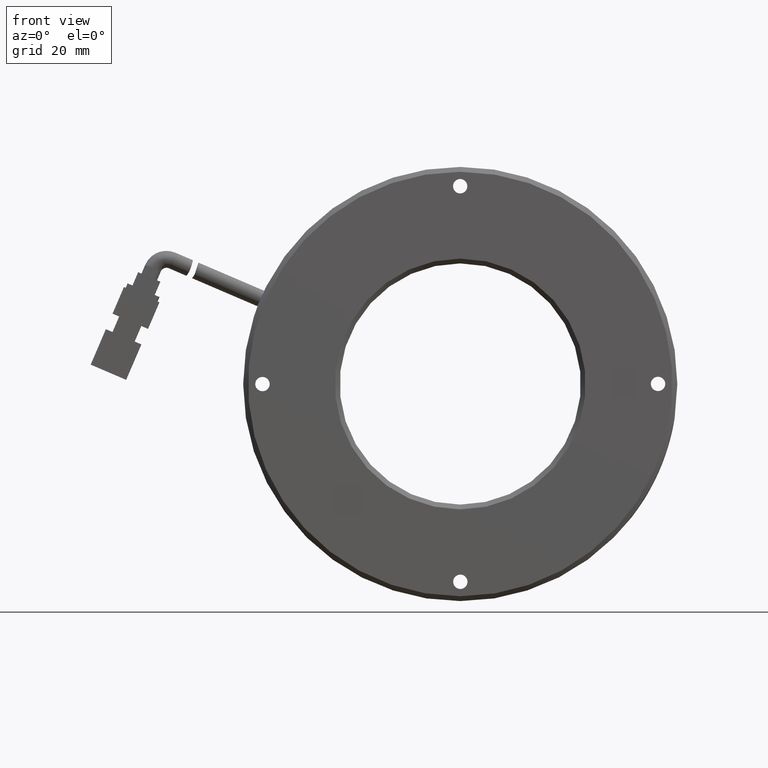
[diagram: clean part render]
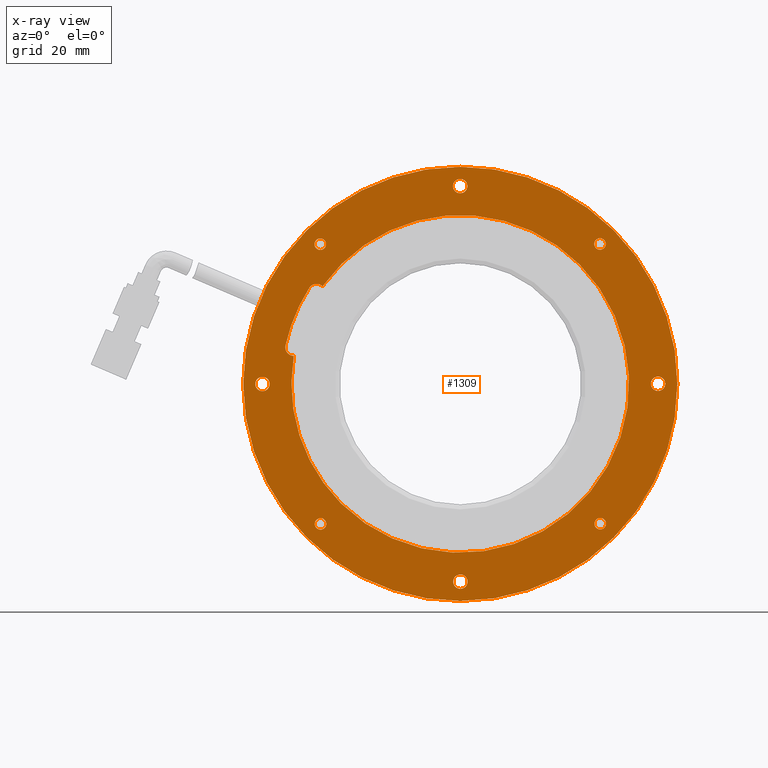
[diagram: x-ray — body ghosted, one internal face saturated and labeled with its STEP entity id]
A machine part, front view, then the same camera in x-ray: the body is ghosted and one INTERNAL B-rep face — a face not visible from any outside direction — is saturated and labeled: STEP entity #1309.
In plain terms, the highlighted planar face has unit normal (-0, 1, -0).
Its self-contained STEP definition (entity closure, byte-faithful):
#20 = CARTESIAN_POINT ( 'NONE',  ( 32.53889595117335900, 5.623552123552124200, 29.01526897348052700 ) ) ;
#43 = VERTEX_POINT ( 'NONE', #24000 ) ;
#265 = EDGE_CURVE ( 'NONE', #2759, #32310, #11354, .T. ) ;
#637 = CARTESIAN_POINT ( 'NONE',  ( 33.43452585846260000, 5.623552123552124200, -28.11823999515512200 ) ) ;
#772 = CARTESIAN_POINT ( 'NONE',  ( -21.15689724054869500, 5.623552123552118000, -24.76913205053216100 ) ) ;
#990 = EDGE_CURVE ( 'NONE', #9486, #24237, #20635, .T. ) ;
#1281 = CARTESIAN_POINT ( 'NONE',  ( -25.44384040205195800, 5.623552123552118900, 28.96746737974478900 ) ) ;
#1309 = ADVANCED_FACE ( 'NONE', ( #39333, #5828, #31017, #14161, #22541, #38350, #30018, #21589, #13174, #4812 ), #22831, .F. ) ;
#1520 = CARTESIAN_POINT ( 'NONE',  ( 43.51162924660406600, 5.623552123552126900, -1.027733399655238700 ) ) ;
#2282 = CARTESIAN_POINT ( 'NONE',  ( 28.29975438340582600, 5.623552123552125100, 24.76913205053215700 ) ) ;
#2459 = DIRECTION ( 'NONE',  ( -0.7076894871580611300, 0.0000000000000000000, 0.7065235946279221400 ) ) ;
#2471 = VERTEX_POINT ( 'NONE', #36731 ) ;
#2478 = EDGE_CURVE ( 'NONE', #23314, #43, #30967, .T. ) ;
#2491 = DIRECTION ( 'NONE',  ( -0.7076894871580611300, 0.0000000000000000000, 0.7065235946279221400 ) ) ;
#2654 = ORIENTED_EDGE ( 'NONE', *, *, #990, .F. ) ;
#2759 = VERTEX_POINT ( 'NONE', #24101 ) ;
#3173 = DIRECTION ( 'NONE',  ( 0.7065235946279211400, 0.0000000000000000000, 0.7076894871580620100 ) ) ;
#3295 = CARTESIAN_POINT ( 'NONE',  ( -26.24386712186973000, 5.623552123552118900, -29.86449635807019500 ) ) ;
#3325 = VERTEX_POINT ( 'NONE', #2282 ) ;
#3376 = EDGE_CURVE ( 'NONE', #13358, #19564, #29379, .T. ) ;
#3591 = DIRECTION ( 'NONE',  ( 1.163897087407499700E-016, -1.000000000000000000, 2.939373556709199000E-017 ) ) ;
#3609 = CIRCLE ( 'NONE', #26081, 1.199999999999998800 ) ;
#4054 = EDGE_LOOP ( 'NONE', ( #2654, #36217 ) ) ;
#4226 = CIRCLE ( 'NONE', #33713, 1.499999999999995600 ) ;
#4812 = FACE_BOUND ( 'NONE', #16398, .T. ) ;
#4819 = CARTESIAN_POINT ( 'NONE',  ( 3.537627740346577500, 5.623552123552124200, 40.99998606711736900 ) ) ;
#4958 = DIRECTION ( 'NONE',  ( 0.7065235946279211400, 0.0000000000000000000, 0.7076894871580620100 ) ) ;
#5141 = CARTESIAN_POINT ( 'NONE',  ( -24.54821049476272100, 5.623552123552118900, -28.16604158889084900 ) ) ;
#5268 = CARTESIAN_POINT ( 'NONE',  ( 45.63120003048781800, 5.623552123552126900, 1.095335061818939500 ) ) ;
#5320 = CIRCLE ( 'NONE', #32427, 37.10000000000000900 ) ;
#5639 = ORIENTED_EDGE ( 'NONE', *, *, #14529, .F. ) ;
#5828 = FACE_OUTER_BOUND ( 'NONE', #28918, .T. ) ;
#5889 = CARTESIAN_POINT ( 'NONE',  ( 4.597413132288457900, 5.623552123552124200, 42.06152029785445700 ) ) ;
#5935 = CARTESIAN_POINT ( 'NONE',  ( 3.571428571428565800, 5.623552123552121500, 0.0000000000000000000 ) ) ;
#6183 = ORIENTED_EDGE ( 'NONE', *, *, #16799, .F. ) ;
#6194 = EDGE_CURVE ( 'NONE', #26913, #7905, #14593, .T. ) ;
#6431 = CIRCLE ( 'NONE', #11655, 1.199999999999998800 ) ;
#6456 = ORIENTED_EDGE ( 'NONE', *, *, #6194, .T. ) ;
#6634 = CARTESIAN_POINT ( 'NONE',  ( 3.605229402510262900, 5.623552123552122400, -40.99998606711737600 ) ) ;
#6783 = AXIS2_PLACEMENT_3D ( 'NONE', #20, #21984, #3173 ) ;
#6887 = CARTESIAN_POINT ( 'NONE',  ( 3.605229402510262900, 5.623552123552122400, -40.99998606711737600 ) ) ;
#7536 = ORIENTED_EDGE ( 'NONE', *, *, #20744, .F. ) ;
#7561 = DIRECTION ( 'NONE',  ( 0.7065235946279211400, 0.0000000000000000000, 0.7076894871580620100 ) ) ;
#7714 = VERTEX_POINT ( 'NONE', #1520 ) ;
#7905 = VERTEX_POINT ( 'NONE', #18525 ) ;
#7966 = EDGE_CURVE ( 'NONE', #10962, #2471, #12098, .T. ) ;
#7972 = DIRECTION ( 'NONE',  ( -0.7065235946279192500, 0.0000000000000000000, -0.7076894871580640100 ) ) ;
#7975 = CIRCLE ( 'NONE', #10495, 1.499999999999996700 ) ;
#8001 = AXIS2_PLACEMENT_3D ( 'NONE', #10501, #32594, #13669 ) ;
#8016 = CARTESIAN_POINT ( 'NONE',  ( 3.571428571428565800, 5.623552123552121500, 0.0000000000000000000 ) ) ;
#8030 = CIRCLE ( 'NONE', #26879, 1.499999999999994900 ) ;
#8663 = EDGE_CURVE ( 'NONE', #23005, #27114, #7975, .T. ) ;
#8677 = EDGE_LOOP ( 'NONE', ( #15362, #17284, #40695, #5639, #10835, #6183, #7536 ) ) ;
#9085 = DIRECTION ( 'NONE',  ( 0.7065235946279216900, 9.912705577010326800E-017, 0.7076894871580616800 ) ) ;
#9125 = VERTEX_POINT ( 'NONE', #637 ) ;
#9190 = VERTEX_POINT ( 'NONE', #19688 ) ;
#9320 = DIRECTION ( 'NONE',  ( 1.163897087407499700E-016, -1.000000000000000000, 2.939373556709199600E-017 ) ) ;
#9486 = VERTEX_POINT ( 'NONE', #5141 ) ;
#9768 = DIRECTION ( 'NONE',  ( -0.7065235946279202500, 0.0000000000000000000, -0.7076894871580629000 ) ) ;
#9817 = DIRECTION ( 'NONE',  ( 1.163897087407499700E-016, -1.000000000000000000, 2.939373556709199600E-017 ) ) ;
#9857 = CARTESIAN_POINT ( 'NONE',  ( 2.477842348404698300, 5.623552123552124200, 39.93845183638028100 ) ) ;
#10042 = DIRECTION ( 'NONE',  ( -0.7065235946279192500, 0.0000000000000000000, -0.7076894871580640100 ) ) ;
#10112 = CARTESIAN_POINT ( 'NONE',  ( -26.29166871560546100, 5.623552123552118900, 28.11823999515511500 ) ) ;
#10277 = DIRECTION ( 'NONE',  ( -1.163897087407499700E-016, 1.000000000000000000, -2.939373556709199600E-017 ) ) ;
#10495 = AXIS2_PLACEMENT_3D ( 'NONE', #16983, #39084, #20146 ) ;
#10501 = CARTESIAN_POINT ( 'NONE',  ( -37.42855749568880700, 5.623552123552118000, -0.03380083108155823600 ) ) ;
#10512 = CARTESIAN_POINT ( 'NONE',  ( -28.22213318682790400, 5.623552123552117100, -31.84602692211277400 ) ) ;
#10518 = EDGE_LOOP ( 'NONE', ( #35701, #20607 ) ) ;
#10680 = DIRECTION ( 'NONE',  ( -1.163897087407499700E-016, 1.000000000000000000, -2.939373556709199600E-017 ) ) ;
#10710 = DIRECTION ( 'NONE',  ( 1.163897087407499700E-016, -1.000000000000000000, 2.939373556709199600E-017 ) ) ;
#10835 = ORIENTED_EDGE ( 'NONE', *, *, #265, .F. ) ;
#10932 = DIRECTION ( 'NONE',  ( 1.163897087407499700E-016, -1.000000000000000000, 2.939373556709199600E-017 ) ) ;
#10953 = VERTEX_POINT ( 'NONE', #772 ) ;
#10962 = VERTEX_POINT ( 'NONE', #22886 ) ;
#11177 = DIRECTION ( 'NONE',  ( 0.7065235946279216900, 9.912705577010326800E-017, 0.7076894871580616800 ) ) ;
#11354 = CIRCLE ( 'NONE', #24102, 1.800000000000001800 ) ;
#11584 = ORIENTED_EDGE ( 'NONE', *, *, #15777, .F. ) ;
#11655 = AXIS2_PLACEMENT_3D ( 'NONE', #12111, #34223, #15239 ) ;
#11764 = AXIS2_PLACEMENT_3D ( 'NONE', #1281, #10710, #7561 ) ;
#12098 = CIRCLE ( 'NONE', #6783, 1.199999999999998800 ) ;
#12111 = CARTESIAN_POINT ( 'NONE',  ( 32.53889595117335900, 5.623552123552124200, 29.01526897348052700 ) ) ;
#12424 = VERTEX_POINT ( 'NONE', #26970 ) ;
#12513 = ORIENTED_EDGE ( 'NONE', *, *, #2478, .T. ) ;
#12710 = ORIENTED_EDGE ( 'NONE', *, *, #29900, .T. ) ;
#12878 = ORIENTED_EDGE ( 'NONE', *, *, #7966, .F. ) ;
#13174 = FACE_BOUND ( 'NONE', #19607, .T. ) ;
#13276 = EDGE_LOOP ( 'NONE', ( #34288, #22750 ) ) ;
#13358 = VERTEX_POINT ( 'NONE', #15639 ) ;
#13398 = CARTESIAN_POINT ( 'NONE',  ( 32.58669754490909300, 5.623552123552124200, -28.96746737974479700 ) ) ;
#13522 = VERTEX_POINT ( 'NONE', #29224 ) ;
#13669 = DIRECTION ( 'NONE',  ( -0.7065235946279214700, 0.0000000000000000000, -0.7076894871580617900 ) ) ;
#13731 = ORIENTED_EDGE ( 'NONE', *, *, #3376, .F. ) ;
#13829 = CARTESIAN_POINT ( 'NONE',  ( 44.57141463854593900, 5.623552123552126900, 0.03380083108184966900 ) ) ;
#14161 = FACE_BOUND ( 'NONE', #13276, .T. ) ;
#14529 = EDGE_CURVE ( 'NONE', #32310, #10953, #17300, .T. ) ;
#14593 = CIRCLE ( 'NONE', #23292, 1.499999999999996700 ) ;
#15161 = EDGE_LOOP ( 'NONE', ( #18060, #33962 ) ) ;
#15239 = DIRECTION ( 'NONE',  ( 0.7065235946279211400, 0.0000000000000000000, 0.7076894871580620100 ) ) ;
#15362 = ORIENTED_EDGE ( 'NONE', *, *, #21140, .F. ) ;
#15377 = CARTESIAN_POINT ( 'NONE',  ( -24.97709561632381500, 5.623552123552118900, 20.24800648709194200 ) ) ;
#15468 = CARTESIAN_POINT ( 'NONE',  ( 44.57141463854593900, 5.623552123552126900, 0.03380083108184966900 ) ) ;
#15639 = CARTESIAN_POINT ( 'NONE',  ( -24.59601208849845100, 5.623552123552118900, 29.81669476433446100 ) ) ;
#15777 = EDGE_CURVE ( 'NONE', #19564, #13358, #28674, .T. ) ;
#16158 = CIRCLE ( 'NONE', #24699, 1.200000000000001300 ) ;
#16398 = EDGE_LOOP ( 'NONE', ( #25822, #12513 ) ) ;
#16453 = CIRCLE ( 'NONE', #22670, 1.499999999999994400 ) ;
#16529 = DIRECTION ( 'NONE',  ( 0.7065235946279211400, 0.0000000000000000000, 0.7076894871580620100 ) ) ;
#16799 = EDGE_CURVE ( 'NONE', #13522, #2759, #5320, .T. ) ;
#16979 = DIRECTION ( 'NONE',  ( -0.7065235946279235800, 0.0000000000000000000, -0.7076894871580596800 ) ) ;
#16983 = CARTESIAN_POINT ( 'NONE',  ( 3.537627740346577500, 5.623552123552124200, 40.99998606711736900 ) ) ;
#17006 = CARTESIAN_POINT ( 'NONE',  ( 32.58669754490909300, 5.623552123552124200, -28.96746737974479700 ) ) ;
#17284 = ORIENTED_EDGE ( 'NONE', *, *, #39263, .F. ) ;
#17300 = CIRCLE ( 'NONE', #25976, 35.00000000000000000 ) ;
#17509 = CIRCLE ( 'NONE', #24675, 1.800000000000000500 ) ;
#17936 = CIRCLE ( 'NONE', #32657, 1.199999999999998800 ) ;
#17967 = VERTEX_POINT ( 'NONE', #10512 ) ;
#18029 = AXIS2_PLACEMENT_3D ( 'NONE', #36411, #27039, #4958 ) ;
#18060 = ORIENTED_EDGE ( 'NONE', *, *, #21805, .T. ) ;
#18519 = EDGE_LOOP ( 'NONE', ( #21162, #12878 ) ) ;
#18525 = CARTESIAN_POINT ( 'NONE',  ( 4.665014794452143400, 5.623552123552122400, -39.93845183638028800 ) ) ;
#18643 = DIRECTION ( 'NONE',  ( -0.7065235946279239100, 0.0000000000000000000, -0.7076894871580593500 ) ) ;
#18993 = EDGE_CURVE ( 'NONE', #17967, #29536, #39977, .T. ) ;
#19564 = VERTEX_POINT ( 'NONE', #10112 ) ;
#19607 = EDGE_LOOP ( 'NONE', ( #6456, #12710 ) ) ;
#19688 = CARTESIAN_POINT ( 'NONE',  ( 31.73886923135559000, 5.623552123552124200, -29.81669476433446800 ) ) ;
#20146 = DIRECTION ( 'NONE',  ( -0.7065235946279202500, 0.0000000000000000000, -0.7076894871580629000 ) ) ;
#20163 = DIRECTION ( 'NONE',  ( 0.7065235946279211400, 0.0000000000000000000, 0.7076894871580620100 ) ) ;
#20302 = CARTESIAN_POINT ( 'NONE',  ( 2.545444010568383800, 5.623552123552122400, -42.06152029785446400 ) ) ;
#20544 = CIRCLE ( 'NONE', #30973, 1.499999999999994400 ) ;
#20607 = ORIENTED_EDGE ( 'NONE', *, *, #38123, .T. ) ;
#20635 = CIRCLE ( 'NONE', #18029, 1.199999999999998800 ) ;
#20744 = EDGE_CURVE ( 'NONE', #12424, #13522, #17509, .T. ) ;
#20944 = EDGE_CURVE ( 'NONE', #33878, #7714, #4226, .T. ) ;
#21140 = EDGE_CURVE ( 'NONE', #37810, #12424, #31788, .T. ) ;
#21162 = ORIENTED_EDGE ( 'NONE', *, *, #26555, .F. ) ;
#21285 = DIRECTION ( 'NONE',  ( 1.163897087407499700E-016, -1.000000000000000000, 2.939373556709199000E-017 ) ) ;
#21325 = DIRECTION ( 'NONE',  ( 1.163897087407499700E-016, -1.000000000000000000, 2.939373556709199000E-017 ) ) ;
#21459 = EDGE_CURVE ( 'NONE', #29536, #17967, #29369, .T. ) ;
#21460 = EDGE_CURVE ( 'NONE', #9190, #9125, #17936, .T. ) ;
#21532 = AXIS2_PLACEMENT_3D ( 'NONE', #40180, #21285, #2459 ) ;
#21589 = FACE_BOUND ( 'NONE', #15161, .T. ) ;
#21805 = EDGE_CURVE ( 'NONE', #7714, #33878, #8030, .T. ) ;
#21984 = DIRECTION ( 'NONE',  ( 1.163897087407499700E-016, -1.000000000000000000, 2.939373556709199600E-017 ) ) ;
#22083 = EDGE_CURVE ( 'NONE', #9125, #9190, #3609, .T. ) ;
#22422 = CARTESIAN_POINT ( 'NONE',  ( 3.571428571428565800, 5.623552123552121500, 0.0000000000000000000 ) ) ;
#22516 = CARTESIAN_POINT ( 'NONE',  ( -30.94255977346659500, 5.623552123552117100, 5.812452883976019900 ) ) ;
#22541 = FACE_BOUND ( 'NONE', #4054, .T. ) ;
#22670 = AXIS2_PLACEMENT_3D ( 'NONE', #6887, #28984, #10042 ) ;
#22750 = ORIENTED_EDGE ( 'NONE', *, *, #21460, .F. ) ;
#22831 = PLANE ( 'NONE',  #31114 ) ;
#22886 = CARTESIAN_POINT ( 'NONE',  ( 31.69106763761985600, 5.623552123552124200, 28.16604158889085200 ) ) ;
#23005 = VERTEX_POINT ( 'NONE', #9857 ) ;
#23292 = AXIS2_PLACEMENT_3D ( 'NONE', #6634, #28719, #9768 ) ;
#23314 = VERTEX_POINT ( 'NONE', #33607 ) ;
#24000 = CARTESIAN_POINT ( 'NONE',  ( -38.48834288763067900, 5.623552123552118000, -1.095335061818644200 ) ) ;
#24101 = CARTESIAN_POINT ( 'NONE',  ( -32.65576092597669300, 5.623552123552117100, 8.000046319809095900 ) ) ;
#24102 = AXIS2_PLACEMENT_3D ( 'NONE', #31903, #31628, #31378 ) ;
#24237 = VERTEX_POINT ( 'NONE', #3295 ) ;
#24273 = CARTESIAN_POINT ( 'NONE',  ( -28.27459835068420100, 5.623552123552118900, 31.79356175825647700 ) ) ;
#24365 = DIRECTION ( 'NONE',  ( -1.163897087407499700E-016, 1.000000000000000000, -2.939373556709199600E-017 ) ) ;
#24553 = DIRECTION ( 'NONE',  ( 0.7065235946279216900, 1.030337130463465200E-016, 0.7076894871580615700 ) ) ;
#24675 = AXIS2_PLACEMENT_3D ( 'NONE', #40217, #21325, #2491 ) ;
#24699 = AXIS2_PLACEMENT_3D ( 'NONE', #29888, #10932, #33030 ) ;
#25341 = AXIS2_PLACEMENT_3D ( 'NONE', #36449, #36328, #36358 ) ;
#25631 = DIRECTION ( 'NONE',  ( -0.7076894871580615700, -7.013706776186549800E-017, 0.7065235946279216900 ) ) ;
#25822 = ORIENTED_EDGE ( 'NONE', *, *, #35384, .T. ) ;
#25976 = AXIS2_PLACEMENT_3D ( 'NONE', #28273, #9320, #31422 ) ;
#26081 = AXIS2_PLACEMENT_3D ( 'NONE', #13398, #35507, #16529 ) ;
#26555 = EDGE_CURVE ( 'NONE', #2471, #10962, #6431, .T. ) ;
#26879 = AXIS2_PLACEMENT_3D ( 'NONE', #15468, #37574, #18643 ) ;
#26912 = DIRECTION ( 'NONE',  ( -1.163897087407499700E-016, 1.000000000000000000, -2.939373556709199600E-017 ) ) ;
#26913 = VERTEX_POINT ( 'NONE', #20302 ) ;
#26970 = CARTESIAN_POINT ( 'NONE',  ( -27.48975675269276700, 5.623552123552118900, 20.21386808221996000 ) ) ;
#27039 = DIRECTION ( 'NONE',  ( 1.163897087407499700E-016, -1.000000000000000000, 2.939373556709199600E-017 ) ) ;
#27114 = VERTEX_POINT ( 'NONE', #5889 ) ;
#28031 = DIRECTION ( 'NONE',  ( 1.163897087407499700E-016, -1.000000000000000000, 2.939373556709199600E-017 ) ) ;
#28079 = ORIENTED_EDGE ( 'NONE', *, *, #21459, .F. ) ;
#28273 = CARTESIAN_POINT ( 'NONE',  ( 3.571428571428565800, 5.623552123552121500, 0.0000000000000000000 ) ) ;
#28465 = AXIS2_PLACEMENT_3D ( 'NONE', #29643, #10680, #32802 ) ;
#28674 = CIRCLE ( 'NONE', #32361, 1.200000000000001300 ) ;
#28719 = DIRECTION ( 'NONE',  ( -1.163897087407499700E-016, 1.000000000000000000, -2.939373556709199600E-017 ) ) ;
#28776 = CARTESIAN_POINT ( 'NONE',  ( -25.44384040205195800, 5.623552123552118900, 28.96746737974478900 ) ) ;
#28918 = EDGE_LOOP ( 'NONE', ( #28079, #31486 ) ) ;
#28984 = DIRECTION ( 'NONE',  ( -1.163897087407499700E-016, 1.000000000000000000, -2.939373556709199600E-017 ) ) ;
#29224 = CARTESIAN_POINT ( 'NONE',  ( -27.73481708218294300, 5.623552123552118900, 19.90801303685858400 ) ) ;
#29239 = CARTESIAN_POINT ( 'NONE',  ( 3.571428571428565800, 5.623552123552121500, 0.0000000000000000000 ) ) ;
#29369 = CIRCLE ( 'NONE', #28465, 45.00000000000000000 ) ;
#29379 = CIRCLE ( 'NONE', #11764, 1.199999999999998800 ) ;
#29536 = VERTEX_POINT ( 'NONE', #35912 ) ;
#29643 = CARTESIAN_POINT ( 'NONE',  ( 3.571428571428565800, 5.623552123552121500, 0.0000000000000000000 ) ) ;
#29888 = CARTESIAN_POINT ( 'NONE',  ( -25.39603880831622700, 5.623552123552118900, -29.01526897348052400 ) ) ;
#29900 = EDGE_CURVE ( 'NONE', #7905, #26913, #16453, .T. ) ;
#30018 = FACE_BOUND ( 'NONE', #10518, .T. ) ;
#30123 = DIRECTION ( 'NONE',  ( 1.163897087407499700E-016, -1.000000000000000000, 2.939373556709199600E-017 ) ) ;
#30967 = CIRCLE ( 'NONE', #25341, 1.499999999999990500 ) ;
#30973 = AXIS2_PLACEMENT_3D ( 'NONE', #4819, #26912, #7972 ) ;
#31017 = FACE_BOUND ( 'NONE', #18519, .T. ) ;
#31114 = AXIS2_PLACEMENT_3D ( 'NONE', #24273, #24365, #24553 ) ;
#31378 = DIRECTION ( 'NONE',  ( -0.7076894871580605700, 0.0000000000000000000, 0.7065235946279225800 ) ) ;
#31422 = DIRECTION ( 'NONE',  ( 0.7065235946279230200, 9.912705577010326800E-017, 0.7076894871580603500 ) ) ;
#31486 = ORIENTED_EDGE ( 'NONE', *, *, #18993, .F. ) ;
#31628 = DIRECTION ( 'NONE',  ( 1.163897087407499700E-016, -1.000000000000000000, 2.939373556709199000E-017 ) ) ;
#31788 = CIRCLE ( 'NONE', #21532, 1.800000000000000500 ) ;
#31903 = CARTESIAN_POINT ( 'NONE',  ( -30.89810752718073800, 5.623552123552117100, 7.611903910761753900 ) ) ;
#31912 = DIRECTION ( 'NONE',  ( 0.7065235946279225800, 0.0000000000000000000, 0.7076894871580605700 ) ) ;
#32310 = VERTEX_POINT ( 'NONE', #22516 ) ;
#32332 = EDGE_LOOP ( 'NONE', ( #13731, #11584 ) ) ;
#32361 = AXIS2_PLACEMENT_3D ( 'NONE', #28776, #9817, #31912 ) ;
#32392 = DIRECTION ( 'NONE',  ( 0.7065235946279216900, 9.637352644315595200E-017, 0.7076894871580614600 ) ) ;
#32427 = AXIS2_PLACEMENT_3D ( 'NONE', #22422, #3591, #25631 ) ;
#32514 = EDGE_CURVE ( 'NONE', #24237, #9486, #16158, .T. ) ;
#32594 = DIRECTION ( 'NONE',  ( -1.163897087407499700E-016, 1.000000000000000000, -2.939373556709199600E-017 ) ) ;
#32657 = AXIS2_PLACEMENT_3D ( 'NONE', #17006, #39097, #20163 ) ;
#32802 = DIRECTION ( 'NONE',  ( 0.7065235946279216900, 9.637352644315595200E-017, 0.7076894871580614600 ) ) ;
#33030 = DIRECTION ( 'NONE',  ( 0.7065235946279225800, 0.0000000000000000000, 0.7076894871580605700 ) ) ;
#33607 = CARTESIAN_POINT ( 'NONE',  ( -36.36877210374692700, 5.623552123552118000, 1.027733399655528000 ) ) ;
#33713 = AXIS2_PLACEMENT_3D ( 'NONE', #13829, #35947, #16979 ) ;
#33878 = VERTEX_POINT ( 'NONE', #5268 ) ;
#33962 = ORIENTED_EDGE ( 'NONE', *, *, #20944, .T. ) ;
#33991 = CIRCLE ( 'NONE', #39713, 35.00000000000000000 ) ;
#34223 = DIRECTION ( 'NONE',  ( 1.163897087407499700E-016, -1.000000000000000000, 2.939373556709199600E-017 ) ) ;
#34288 = ORIENTED_EDGE ( 'NONE', *, *, #22083, .F. ) ;
#34310 = CIRCLE ( 'NONE', #37331, 35.00000000000000000 ) ;
#34498 = CIRCLE ( 'NONE', #8001, 1.499999999999990500 ) ;
#35384 = EDGE_CURVE ( 'NONE', #43, #23314, #34498, .T. ) ;
#35507 = DIRECTION ( 'NONE',  ( 1.163897087407499700E-016, -1.000000000000000000, 2.939373556709199600E-017 ) ) ;
#35701 = ORIENTED_EDGE ( 'NONE', *, *, #8663, .T. ) ;
#35912 = CARTESIAN_POINT ( 'NONE',  ( 35.36499032968504300, 5.623552123552126000, 31.84602692211276700 ) ) ;
#35947 = DIRECTION ( 'NONE',  ( -1.163897087407499700E-016, 1.000000000000000000, -2.939373556709199600E-017 ) ) ;
#36217 = ORIENTED_EDGE ( 'NONE', *, *, #32514, .F. ) ;
#36328 = DIRECTION ( 'NONE',  ( -1.163897087407499700E-016, 1.000000000000000000, -2.939373556709199600E-017 ) ) ;
#36358 = DIRECTION ( 'NONE',  ( -0.7065235946279214700, 0.0000000000000000000, -0.7076894871580617900 ) ) ;
#36411 = CARTESIAN_POINT ( 'NONE',  ( -25.39603880831622700, 5.623552123552118900, -29.01526897348052400 ) ) ;
#36449 = CARTESIAN_POINT ( 'NONE',  ( -37.42855749568880700, 5.623552123552118000, -0.03380083108155823600 ) ) ;
#36731 = CARTESIAN_POINT ( 'NONE',  ( 33.38672426472686500, 5.623552123552124200, 29.86449635807019800 ) ) ;
#37331 = AXIS2_PLACEMENT_3D ( 'NONE', #8016, #30123, #11177 ) ;
#37574 = DIRECTION ( 'NONE',  ( -1.163897087407499700E-016, 1.000000000000000000, -2.939373556709199600E-017 ) ) ;
#37810 = VERTEX_POINT ( 'NONE', #15377 ) ;
#38123 = EDGE_CURVE ( 'NONE', #27114, #23005, #20544, .T. ) ;
#38350 = FACE_BOUND ( 'NONE', #32332, .T. ) ;
#38776 = AXIS2_PLACEMENT_3D ( 'NONE', #29239, #10277, #32392 ) ;
#39084 = DIRECTION ( 'NONE',  ( -1.163897087407499700E-016, 1.000000000000000000, -2.939373556709199600E-017 ) ) ;
#39097 = DIRECTION ( 'NONE',  ( 1.163897087407499700E-016, -1.000000000000000000, 2.939373556709199600E-017 ) ) ;
#39263 = EDGE_CURVE ( 'NONE', #3325, #37810, #34310, .T. ) ;
#39333 = FACE_BOUND ( 'NONE', #8677, .T. ) ;
#39713 = AXIS2_PLACEMENT_3D ( 'NONE', #5935, #28031, #9085 ) ;
#39810 = EDGE_CURVE ( 'NONE', #10953, #3325, #33991, .T. ) ;
#39977 = CIRCLE ( 'NONE', #38776, 45.00000000000000000 ) ;
#40180 = CARTESIAN_POINT ( 'NONE',  ( -26.21591567580825500, 5.623552123552118900, 18.94212561188970100 ) ) ;
#40217 = CARTESIAN_POINT ( 'NONE',  ( -26.21591567580825500, 5.623552123552118900, 18.94212561188970100 ) ) ;
#40695 = ORIENTED_EDGE ( 'NONE', *, *, #39810, .F. ) ;